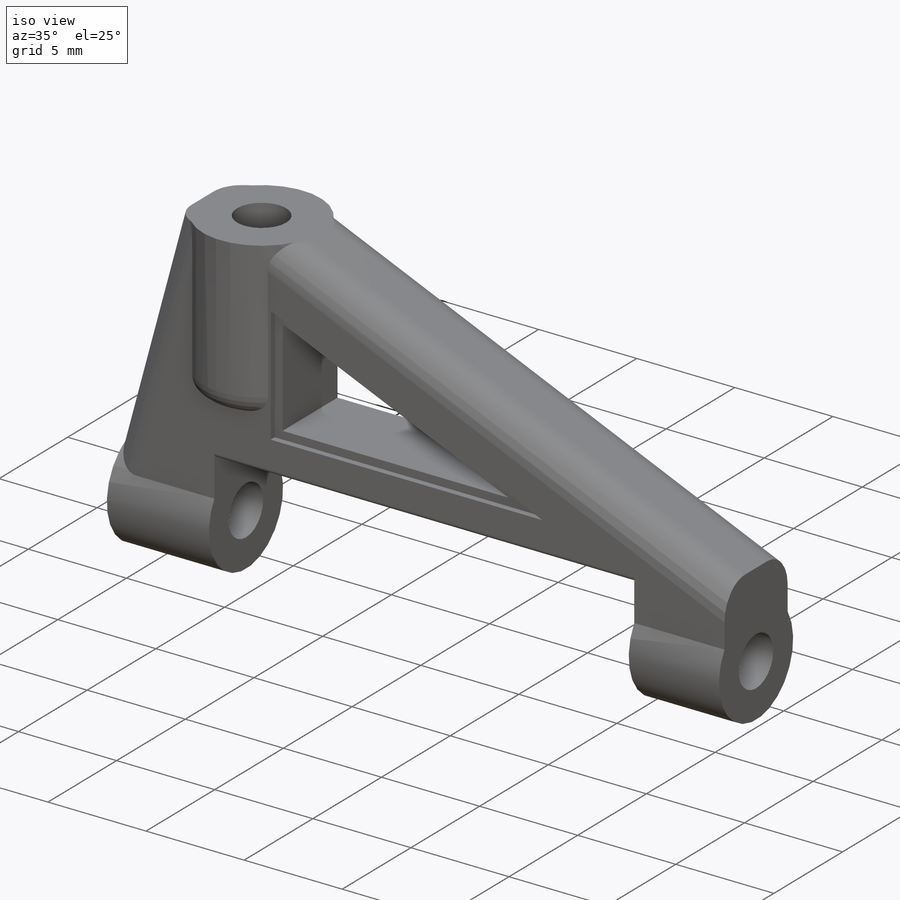
[diagram: iso view]
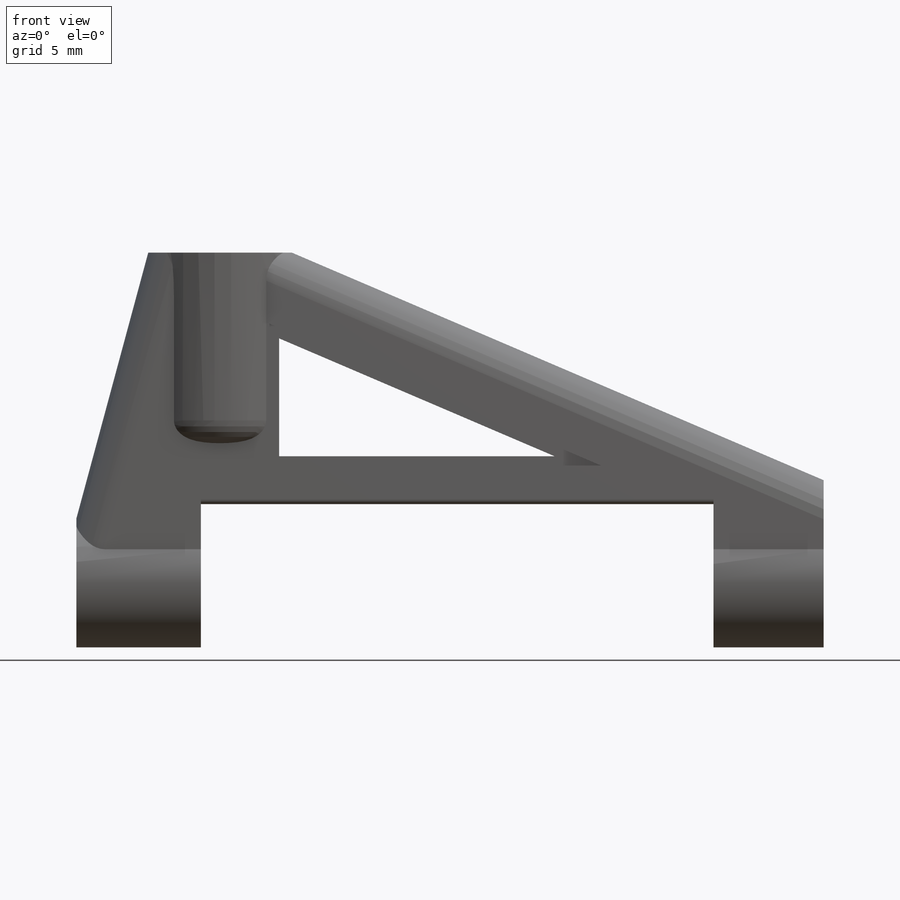
[diagram: front view]
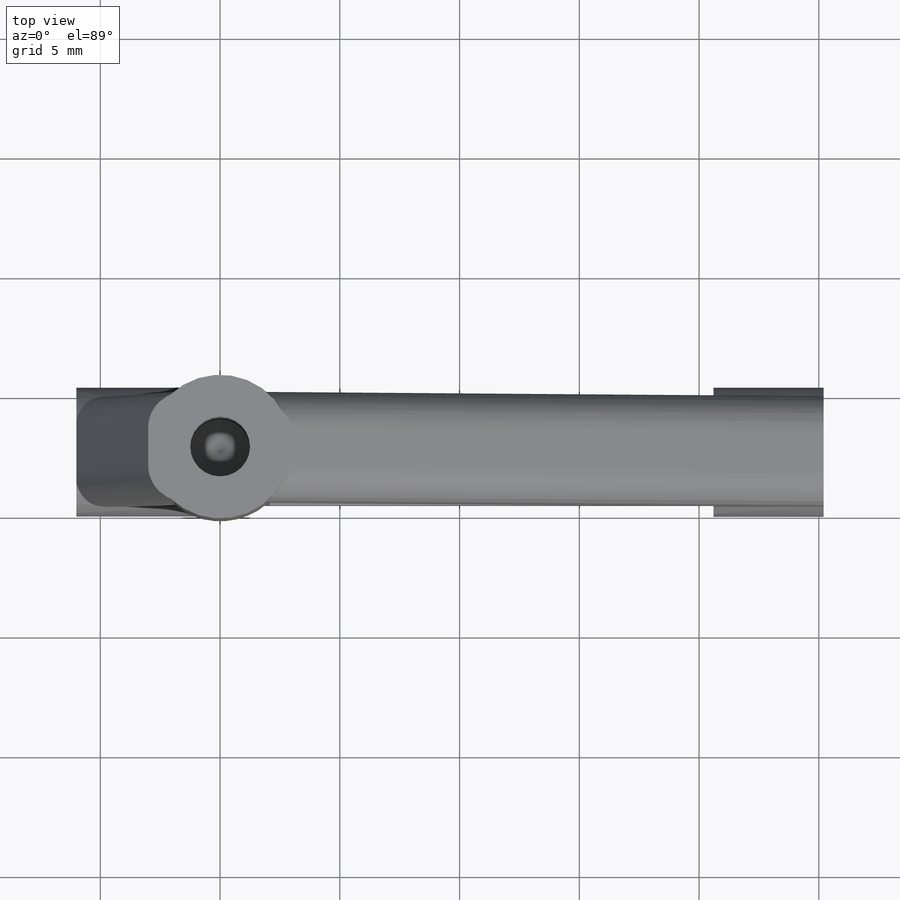
[diagram: top view]
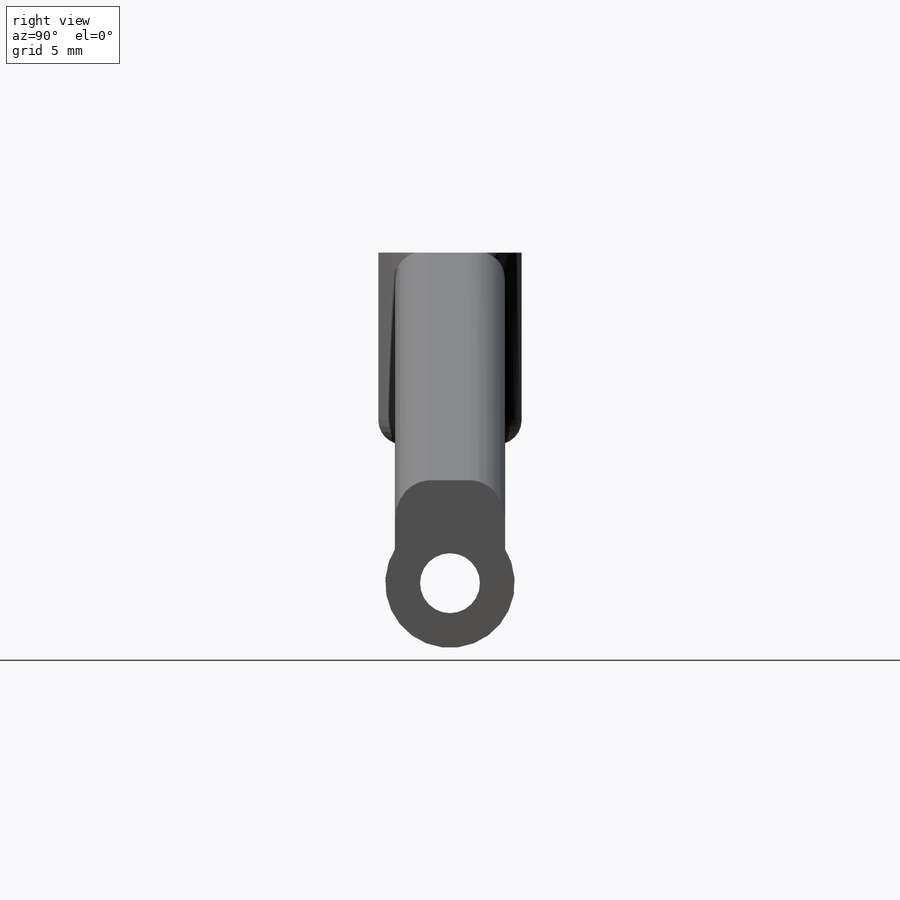
[diagram: right view]
SOLIDWORKS PART (.sldprt)
format: sldprt  version: not decoded by parser v0  size: 397,312 bytes
history: native  units: mm
features: sketch x11, cut_extrude x5, extrude x4, plane x3, fillet x3, material x1, hole x1, thread x1 (+10 scaffold rows collapsed)
feature tree (39):
  scaffold x10  (default folders/planes/origin — collapsed)
  material  "材质 <未指定>"
  plane  "前视基准面"
  plane  "上视基准面"
  plane  "右视基准面"
  sketch  "草图1"  dims[c1.D1=5.4mm c1.D2=6.0mm c1.D3=5.2mm c1.D4=4.6mm c1.D5=31.2mm c1.D6=6.0mm c1.D7=16.8mm c1.D8=7.0mm c1.D9=6.0mm c1.D10=3.5mm c1.D11=2.0mm c1.D12=11.5mm c1.D13=~5.878977mm c2.D7=13.8mm]
  extrude  "凸台-拉伸1"  Depth=4.6mm
  sketch  "草图2"
  extrude  "凸台-拉伸2"  Depth=8mm
  sketch  "草图3"
  extrude  "凸台-拉伸3"  [1 undecoded]
  sketch  "草图5"  dims[D1=0.0mm]
  extrude  "凸台-拉伸4"  [1 undecoded]
  sketch  "草图4"
  cut_extrude  "切除-拉伸1"  [1 undecoded]
  fillet  "圆角1"  Radius=1.5mm
  sketch  "草图6"
  cut_extrude  "切除-拉伸2"  [1 undecoded]
  sketch  "草图7"  dims[D1=0.4mm]
  cut_extrude  "切除-拉伸3"  Depth=0.3mm
  sketch  "草图8"  dims[D1=0.0mm D2=0.0mm]
  cut_extrude  "切除-拉伸4"  Depth=0.3mm
  fillet  "圆角2"  Radius=0.2mm
  fillet  "圆角3"  Radius=1mm
  sketch  "草图9"  dims[D1=2.5mm]
  cut_extrude  "切除-拉伸5"  [1 undecoded]
  hole  "M3 螺纹孔1"  [1 undecoded]
  sketch  "3D草图1"
  sketch  "草图11"  dims[hole-wizard template sketch: 50 standard entries collapsed; hole parameters above]
  thread  "孔螺蚊线1"  Diameter=4mm  [1 undecoded]
decode coverage: 14 of 25 modeling features carry decoded parameters
note: ~ marks probable driven/reference dimensions
note: 7 parameter values undecoded
summary: no parameter record found for 6 features
note: suppression state not decoded; provenance and decode notes live in map.json
